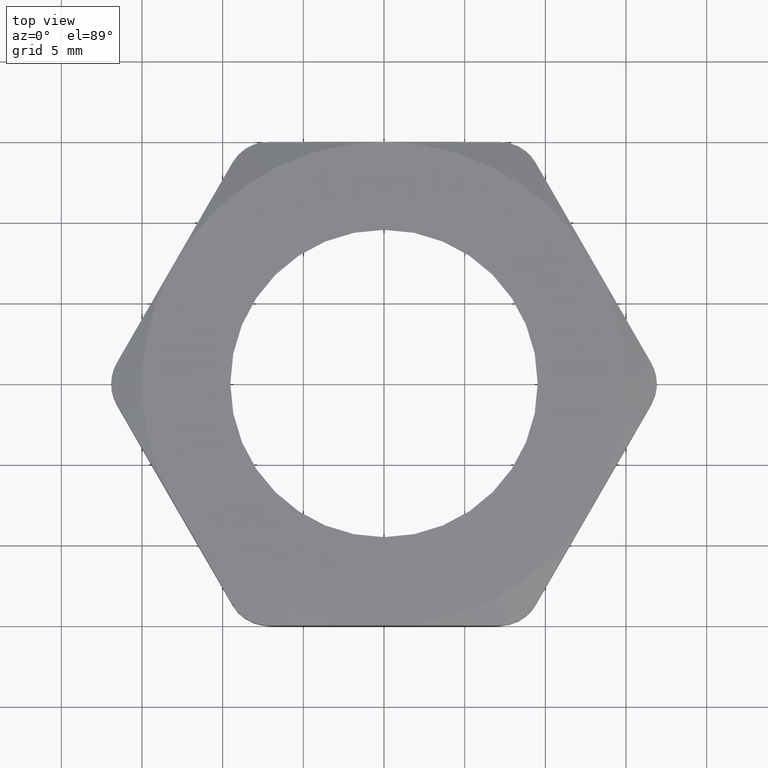
[diagram: clean part render]
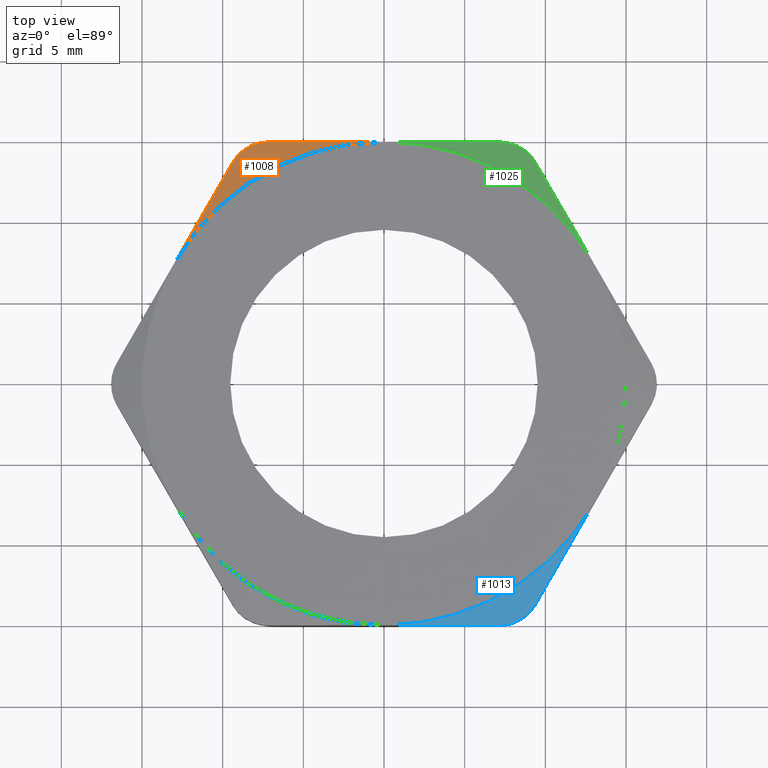
[diagram: same view with three faces highlighted in distinct colors, each labeled with its STEP entity id]
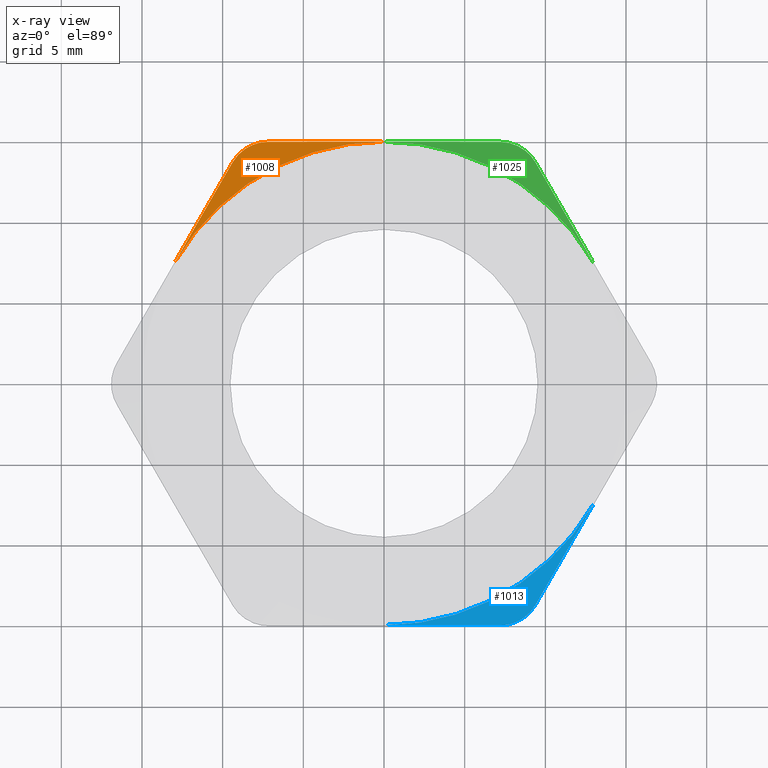
[diagram: x-ray of the same camera — body ghosted, the three highlighted faces saturated]
A machine part, top view with three faces highlighted in distinct colors.
The next image is the same camera in x-ray (body ghosted, the three faces saturated) — at least one of them is partly hidden behind the body in this view.
Their STEP definitions:

[orange] entity #1008 — the highlighted conical surface has half-angle 70 deg.
#852 = VERTEX_POINT ( 'NONE', #2270 ) ;
#854 = EDGE_CURVE ( 'NONE', #855, #852, #2263, .T. ) ;
#855 = VERTEX_POINT ( 'NONE', #2262 ) ;
#882 = EDGE_CURVE ( 'NONE', #855, #892, #2355, .T. ) ;
#892 = VERTEX_POINT ( 'NONE', #2368 ) ;
#894 = EDGE_CURVE ( 'NONE', #895, #892, #2367, .T. ) ;
#895 = VERTEX_POINT ( 'NONE', #2366 ) ;
#966 = EDGE_CURVE ( 'NONE', #895, #852, #2546, .T. ) ;
#1008 = ADVANCED_FACE ( 'NONE', ( #2649 ), #2644, .T. ) ;
#1009 = EDGE_LOOP ( 'NONE', ( #1010, #1062, #1063, #1064 ) ) ;
#1010 = ORIENTED_EDGE ( 'NONE', *, *, #854, .T. ) ;
#1062 = ORIENTED_EDGE ( 'NONE', *, *, #966, .F. ) ;
#1063 = ORIENTED_EDGE ( 'NONE', *, *, #894, .T. ) ;
#1064 = ORIENTED_EDGE ( 'NONE', *, *, #882, .F. ) ;
#2256 = CARTESIAN_POINT ( 'NONE',  ( -0.5109549882328189300, 0.2949999999999999800, 0.1400000000000000100 ) ) ;
#2257 = CARTESIAN_POINT ( 'NONE',  ( -0.4873798522409090700, 0.3358333333333332600, 0.1400000000000000100 ) ) ;
#2258 = CARTESIAN_POINT ( 'NONE',  ( -0.4638047162489993300, 0.3766666666666664800, 0.1379156573442720500 ) ) ;
#2259 = CARTESIAN_POINT ( 'NONE',  ( -0.4166544442651798400, 0.4583333333333333100, 0.1299136729781496500 ) ) ;
#2260 = CARTESIAN_POINT ( 'NONE',  ( -0.3930793082732701400, 0.4991666666666665400, 0.1240096691572097900 ) ) ;
#2261 = CARTESIAN_POINT ( 'NONE',  ( -0.3695041722813604500, 0.5399999999999999200, 0.1165898041837598200 ) ) ;
#2262 = CARTESIAN_POINT ( 'NONE',  ( -0.3695041722813604500, 0.5399999999999999200, 0.1165898041837598200 ) ) ;
#2263 = B_SPLINE_CURVE_WITH_KNOTS ( 'NONE', 3,
 ( #2261, #2260, #2259, #2258, #2257, #2256 ),
 .UNSPECIFIED., .F., .F.,
 ( 4, 2, 4 ),
 ( 2.309401076763871700E-007, 0.003593081665274719100, 0.007185932390441761300 ),
 .UNSPECIFIED. ) ;
#2270 = CARTESIAN_POINT ( 'NONE',  ( -0.5109549882328189300, 0.2949999999999999800, 0.1400000000000000100 ) ) ;
#2332 = CARTESIAN_POINT ( 'NONE',  ( -0.2829016319029170100, 0.5899999999999999700, 0.1165898041837604000 ) ) ;
#2333 = CARTESIAN_POINT ( 'NONE',  ( -0.2916344918958208600, 0.5899999999999999700, 0.1152155461094558100 ) ) ;
#2334 = CARTESIAN_POINT ( 'NONE',  ( -0.3003476335038807200, 0.5888494143445511800, 0.1141692742250594400 ) ) ;
#2335 = CARTESIAN_POINT ( 'NONE',  ( -0.3171431553112576400, 0.5843561750114829600, 0.1127692753527653200 ) ) ;
#2336 = CARTESIAN_POINT ( 'NONE',  ( -0.3253985704520011600, 0.5809398279768189800, 0.1124084237049081900 ) ) ;
#2337 = CARTESIAN_POINT ( 'NONE',  ( -0.3404977336752633100, 0.5722115025962156700, 0.1124113218517238200 ) ) ;
#2338 = CARTESIAN_POINT ( 'NONE',  ( -0.3475344738540587200, 0.5668041991354780800, 0.1127707450677139100 ) ) ;
#2339 = CARTESIAN_POINT ( 'NONE',  ( -0.3598709312914902300, 0.5544361405979255600, 0.1141820697376478400 ) ) ;
#2340 = CARTESIAN_POINT ( 'NONE',  ( -0.3651381384351335400, 0.5475621924492301000, 0.1152156707908651300 ) ) ;
#2341 = CARTESIAN_POINT ( 'NONE',  ( -0.3695041722813604500, 0.5399999999999999200, 0.1165898041837598200 ) ) ;
#2355 = B_SPLINE_CURVE_WITH_KNOTS ( 'NONE', 3,
 ( #2341, #2340, #2339, #2338, #2337, #2336, #2335, #2334, #2333, #2332 ),
 .UNSPECIFIED., .F., .F.,
 ( 4, 2, 2, 2, 4 ),
 ( 2.305283928959887000E-007, 0.0006644491919588606000, 0.001328667855524825200, 0.001992886519090789600, 0.002657105182656754200 ),
 .UNSPECIFIED. ) ;
#2360 = CARTESIAN_POINT ( 'NONE',  ( -0.2829016319029170100, 0.5899999999999999700, 0.1165898041837604000 ) ) ;
#2361 = CARTESIAN_POINT ( 'NONE',  ( -0.2359568793644979400, 0.5899999999999999700, 0.1239773273175950700 ) ) ;
#2362 = CARTESIAN_POINT ( 'NONE',  ( -0.1885694990668104500, 0.5899999999999997500, 0.1299184763548549600 ) ) ;
#2363 = CARTESIAN_POINT ( 'NONE',  ( -0.09417343624590569800, 0.5900000000000000800, 0.1379243167828554700 ) ) ;
#2364 = CARTESIAN_POINT ( 'NONE',  ( -0.04704775606604737900, 0.5899999999999999700, 0.1399999999999999900 ) ) ;
#2365 = CARTESIAN_POINT ( 'NONE',  ( 0.0000000000000000000, 0.5899999999999999700, 0.1400000000000000100 ) ) ;
#2366 = CARTESIAN_POINT ( 'NONE',  ( 0.0000000000000000000, 0.5899999999999999700, 0.1400000000000000100 ) ) ;
#2367 = B_SPLINE_CURVE_WITH_KNOTS ( 'NONE', 3,
 ( #2365, #2364, #2363, #2362, #2361, #2360 ),
 .UNSPECIFIED., .F., .F.,
 ( 4, 2, 4 ),
 ( 0.03721477544052118100, 0.04081988234232054200, 0.04442498924411990300 ),
 .UNSPECIFIED. ) ;
#2368 = CARTESIAN_POINT ( 'NONE',  ( -0.2829016319029170100, 0.5899999999999999700, 0.1165898041837604000 ) ) ;
#2542 = DIRECTION ( 'NONE',  ( 1.000000000000000000, 0.0000000000000000000, 0.0000000000000000000 ) ) ;
#2543 = DIRECTION ( 'NONE',  ( 0.0000000000000000000, 0.0000000000000000000, 1.000000000000000000 ) ) ;
#2544 = CARTESIAN_POINT ( 'NONE',  ( 0.0000000000000000000, 0.0000000000000000000, 0.1400000000000000100 ) ) ;
#2545 = AXIS2_PLACEMENT_3D ( 'NONE', #2544, #2543, #2542 ) ;
#2546 = CIRCLE ( 'NONE', #2545, 0.5899999999999999700 ) ;
#2639 = DIRECTION ( 'NONE',  ( 1.000000000000000000, 0.0000000000000000000, 0.0000000000000000000 ) ) ;
#2640 = DIRECTION ( 'NONE',  ( 0.0000000000000000000, 0.0000000000000000000, -1.000000000000000000 ) ) ;
#2641 = CARTESIAN_POINT ( 'NONE',  ( 0.0000000000000000000, 0.0000000000000000000, 0.1400000000000000100 ) ) ;
#2642 = AXIS2_PLACEMENT_3D ( 'NONE', #2641, #2640, #2639 ) ;
#2644 = CONICAL_SURFACE ( 'NONE', #2642, 0.5899999999999999700, 1.221730476396033500 ) ;
#2649 = FACE_OUTER_BOUND ( 'NONE', #1009, .T. ) ;

[blue] entity #1013 — the highlighted conical surface has half-angle 70 deg.
#172 = CARTESIAN_POINT ( 'NONE',  ( 0.2358826611893542800, -0.5899999999999998600, 0.1239890067589847200 ) ) ;
#174 = CARTESIAN_POINT ( 'NONE',  ( 0.2829016319029166200, -0.5899999999999998600, 0.1165898041837598600 ) ) ;
#750 = VERTEX_POINT ( 'NONE', #2008 ) ;
#769 = EDGE_CURVE ( 'NONE', #770, #750, #2062, .T. ) ;
#770 = VERTEX_POINT ( 'NONE', #2114 ) ;
#833 = VERTEX_POINT ( 'NONE', #2202 ) ;
#835 = EDGE_CURVE ( 'NONE', #836, #833, #2195, .T. ) ;
#836 = VERTEX_POINT ( 'NONE', #2194 ) ;
#938 = EDGE_CURVE ( 'NONE', #836, #750, #2475, .T. ) ;
#1013 = ADVANCED_FACE ( 'NONE', ( #2643 ), #2638, .T. ) ;
#1014 = EDGE_LOOP ( 'NONE', ( #1015, #1016, #1017, #1018 ) ) ;
#1015 = ORIENTED_EDGE ( 'NONE', *, *, #769, .T. ) ;
#1016 = ORIENTED_EDGE ( 'NONE', *, *, #938, .F. ) ;
#1017 = ORIENTED_EDGE ( 'NONE', *, *, #835, .T. ) ;
#1018 = ORIENTED_EDGE ( 'NONE', *, *, #1024, .F. ) ;
#1024 = EDGE_CURVE ( 'NONE', #770, #833, #2627, .T. ) ;
#1573 = CARTESIAN_POINT ( 'NONE',  ( 0.1888074652285850500, -0.5899999999999997500, 0.1298905240055037700 ) ) ;
#2008 = CARTESIAN_POINT ( 'NONE',  ( 0.2829016319029166200, -0.5899999999999998600, 0.1165898041837598600 ) ) ;
#2056 = CARTESIAN_POINT ( 'NONE',  ( 0.09451477370814034800, -0.5899999999999998600, 0.1379030901209119800 ) ) ;
#2057 = CARTESIAN_POINT ( 'NONE',  ( 0.04729674735058522100, -0.5899999999999997500, 0.1400000000000000700 ) ) ;
#2058 = CARTESIAN_POINT ( 'NONE',  ( 0.0000000000000000000, -0.5899999999999998600, 0.1400000000000000100 ) ) ;
#2062 = B_SPLINE_CURVE_WITH_KNOTS ( 'NONE', 3,
 ( #2058, #2057, #2056, #1573, #172, #174 ),
 .UNSPECIFIED., .F., .F.,
 ( 4, 2, 4 ),
 ( 0.02216258283476369600, 0.02579298862878100900, 0.02942339442279831900 ),
 .UNSPECIFIED. ) ;
#2114 = CARTESIAN_POINT ( 'NONE',  ( 0.0000000000000000000, -0.5899999999999998600, 0.1400000000000000100 ) ) ;
#2194 = CARTESIAN_POINT ( 'NONE',  ( 0.3695041722813604000, -0.5399999999999998100, 0.1165898041837598300 ) ) ;
#2195 = B_SPLINE_CURVE_WITH_KNOTS ( 'NONE', 3,
 ( #2249, #2248, #2247, #2246, #2245, #2244 ),
 .UNSPECIFIED., .F., .F.,
 ( 4, 2, 4 ),
 ( 2.309401076763871400E-007, 0.003593081665274719100, 0.007185932390441761300 ),
 .UNSPECIFIED. ) ;
#2202 = CARTESIAN_POINT ( 'NONE',  ( 0.5109549882328188200, -0.2949999999999998200, 0.1400000000000000100 ) ) ;
#2244 = CARTESIAN_POINT ( 'NONE',  ( 0.5109549882328188200, -0.2949999999999998200, 0.1400000000000000100 ) ) ;
#2245 = CARTESIAN_POINT ( 'NONE',  ( 0.4873798522409089600, -0.3358333333333331000, 0.1400000000000000700 ) ) ;
#2246 = CARTESIAN_POINT ( 'NONE',  ( 0.4638047162489993300, -0.3766666666666663200, 0.1379156573442721100 ) ) ;
#2247 = CARTESIAN_POINT ( 'NONE',  ( 0.4166544442651798400, -0.4583333333333330900, 0.1299136729781496800 ) ) ;
#2248 = CARTESIAN_POINT ( 'NONE',  ( 0.3930793082732701400, -0.4991666666666666500, 0.1240096691572097900 ) ) ;
#2249 = CARTESIAN_POINT ( 'NONE',  ( 0.3695041722813604000, -0.5399999999999998100, 0.1165898041837598300 ) ) ;
#2469 = CARTESIAN_POINT ( 'NONE',  ( 0.3651381384351336000, -0.5475621924492303200, 0.1152156707908652000 ) ) ;
#2470 = CARTESIAN_POINT ( 'NONE',  ( 0.3695041722813604000, -0.5399999999999998100, 0.1165898041837598300 ) ) ;
#2475 = B_SPLINE_CURVE_WITH_KNOTS ( 'NONE', 3,
 ( #2470, #2469, #2527, #2526, #2525, #2524, #2523, #2522, #2521, #2520 ),
 .UNSPECIFIED., .F., .F.,
 ( 4, 2, 2, 2, 4 ),
 ( 2.305283928960364000E-007, 0.0006644491919588617900, 0.001328667855524827600, 0.001992886519090793500, 0.002657105182656761600 ),
 .UNSPECIFIED. ) ;
#2520 = CARTESIAN_POINT ( 'NONE',  ( 0.2829016319029166200, -0.5899999999999998600, 0.1165898041837598600 ) ) ;
#2521 = CARTESIAN_POINT ( 'NONE',  ( 0.2916344918958205800, -0.5899999999999998600, 0.1152155461094558800 ) ) ;
#2522 = CARTESIAN_POINT ( 'NONE',  ( 0.3003476335038803300, -0.5888494143445509600, 0.1141692742250595100 ) ) ;
#2523 = CARTESIAN_POINT ( 'NONE',  ( 0.3171431553112573100, -0.5843561750114829600, 0.1127692753527653700 ) ) ;
#2524 = CARTESIAN_POINT ( 'NONE',  ( 0.3253985704520011000, -0.5809398279768190900, 0.1124084237049083100 ) ) ;
#2525 = CARTESIAN_POINT ( 'NONE',  ( 0.3404977336752632600, -0.5722115025962155600, 0.1124113218517238700 ) ) ;
#2526 = CARTESIAN_POINT ( 'NONE',  ( 0.3475344738540587200, -0.5668041991354780800, 0.1127707450677139900 ) ) ;
#2527 = CARTESIAN_POINT ( 'NONE',  ( 0.3598709312914901100, -0.5544361405979253400, 0.1141820697376479100 ) ) ;
#2623 = DIRECTION ( 'NONE',  ( 1.000000000000000000, 0.0000000000000000000, 0.0000000000000000000 ) ) ;
#2624 = DIRECTION ( 'NONE',  ( 0.0000000000000000000, 0.0000000000000000000, 1.000000000000000000 ) ) ;
#2625 = CARTESIAN_POINT ( 'NONE',  ( 0.0000000000000000000, 0.0000000000000000000, 0.1400000000000000100 ) ) ;
#2626 = AXIS2_PLACEMENT_3D ( 'NONE', #2625, #2624, #2623 ) ;
#2627 = CIRCLE ( 'NONE', #2626, 0.5899999999999999700 ) ;
#2633 = DIRECTION ( 'NONE',  ( 1.000000000000000000, 0.0000000000000000000, 0.0000000000000000000 ) ) ;
#2634 = DIRECTION ( 'NONE',  ( 0.0000000000000000000, 0.0000000000000000000, -1.000000000000000000 ) ) ;
#2635 = CARTESIAN_POINT ( 'NONE',  ( 0.0000000000000000000, 0.0000000000000000000, 0.1400000000000000100 ) ) ;
#2636 = AXIS2_PLACEMENT_3D ( 'NONE', #2635, #2634, #2633 ) ;
#2638 = CONICAL_SURFACE ( 'NONE', #2636, 0.5899999999999999700, 1.221730476396033500 ) ;
#2643 = FACE_OUTER_BOUND ( 'NONE', #1014, .T. ) ;

[green] entity #1025 — the highlighted conical surface has half-angle 70 deg.
#812 = VERTEX_POINT ( 'NONE', #2180 ) ;
#895 = VERTEX_POINT ( 'NONE', #2366 ) ;
#897 = EDGE_CURVE ( 'NONE', #898, #895, #2359, .T. ) ;
#898 = VERTEX_POINT ( 'NONE', #2358 ) ;
#905 = VERTEX_POINT ( 'NONE', #2388 ) ;
#907 = EDGE_CURVE ( 'NONE', #812, #905, #2387, .T. ) ;
#950 = EDGE_LOOP ( 'NONE', ( #951, #952, #953, #954 ) ) ;
#951 = ORIENTED_EDGE ( 'NONE', *, *, #907, .T. ) ;
#952 = ORIENTED_EDGE ( 'NONE', *, *, #985, .F. ) ;
#953 = ORIENTED_EDGE ( 'NONE', *, *, #897, .T. ) ;
#954 = ORIENTED_EDGE ( 'NONE', *, *, #964, .F. ) ;
#964 = EDGE_CURVE ( 'NONE', #812, #895, #2551, .T. ) ;
#985 = EDGE_CURVE ( 'NONE', #898, #905, #2619, .T. ) ;
#1025 = ADVANCED_FACE ( 'NONE', ( #2622 ), #2621, .T. ) ;
#2180 = CARTESIAN_POINT ( 'NONE',  ( 0.5109549882328189300, 0.2949999999999998700, 0.1400000000000000100 ) ) ;
#2358 = CARTESIAN_POINT ( 'NONE',  ( 0.2829016319029168900, 0.5899999999999999700, 0.1165898041837597500 ) ) ;
#2359 = B_SPLINE_CURVE_WITH_KNOTS ( 'NONE', 3,
 ( #2407, #2406, #2405, #2404, #2403, #2402 ),
 .UNSPECIFIED., .F., .F.,
 ( 4, 2, 4 ),
 ( 0.02996640295419522900, 0.03359058919735820300, 0.03721477544052118100 ),
 .UNSPECIFIED. ) ;
#2366 = CARTESIAN_POINT ( 'NONE',  ( 0.0000000000000000000, 0.5899999999999999700, 0.1400000000000000100 ) ) ;
#2385 = CARTESIAN_POINT ( 'NONE',  ( 0.4873798522409091800, 0.3358333333333332100, 0.1399999999999999900 ) ) ;
#2386 = CARTESIAN_POINT ( 'NONE',  ( 0.5109549882328189300, 0.2949999999999998700, 0.1400000000000000100 ) ) ;
#2387 = B_SPLINE_CURVE_WITH_KNOTS ( 'NONE', 3,
 ( #2386, #2385, #2439, #2438, #2437, #2436 ),
 .UNSPECIFIED., .F., .F.,
 ( 4, 2, 4 ),
 ( 0.007185932390441748300, 0.01077878311560878800, 0.01437163384077582900 ),
 .UNSPECIFIED. ) ;
#2388 = CARTESIAN_POINT ( 'NONE',  ( 0.3695041722813607300, 0.5399999999999999200, 0.1165898041837597200 ) ) ;
#2402 = CARTESIAN_POINT ( 'NONE',  ( 0.0000000000000000000, 0.5899999999999999700, 0.1400000000000000100 ) ) ;
#2403 = CARTESIAN_POINT ( 'NONE',  ( 0.04729674735058512400, 0.5899999999999999700, 0.1400000000000000100 ) ) ;
#2404 = CARTESIAN_POINT ( 'NONE',  ( 0.09451477370814037600, 0.5899999999999999700, 0.1379030901209119000 ) ) ;
#2405 = CARTESIAN_POINT ( 'NONE',  ( 0.1888074652285852700, 0.5900000000000000800, 0.1298905240055037700 ) ) ;
#2406 = CARTESIAN_POINT ( 'NONE',  ( 0.2358826611893545500, 0.5900000000000000800, 0.1239890067589846900 ) ) ;
#2407 = CARTESIAN_POINT ( 'NONE',  ( 0.2829016319029168900, 0.5899999999999999700, 0.1165898041837597500 ) ) ;
#2436 = CARTESIAN_POINT ( 'NONE',  ( 0.3695041722813607300, 0.5399999999999999200, 0.1165898041837597200 ) ) ;
#2437 = CARTESIAN_POINT ( 'NONE',  ( 0.3930793082732704200, 0.4991666666666666500, 0.1240096691572097500 ) ) ;
#2438 = CARTESIAN_POINT ( 'NONE',  ( 0.4166544442651803300, 0.4583333333333331500, 0.1299136729781496000 ) ) ;
#2439 = CARTESIAN_POINT ( 'NONE',  ( 0.4638047162489996600, 0.3766666666666664800, 0.1379156573442719700 ) ) ;
#2547 = DIRECTION ( 'NONE',  ( 1.000000000000000000, 0.0000000000000000000, 0.0000000000000000000 ) ) ;
#2548 = DIRECTION ( 'NONE',  ( 0.0000000000000000000, 0.0000000000000000000, 1.000000000000000000 ) ) ;
#2549 = CARTESIAN_POINT ( 'NONE',  ( 0.0000000000000000000, 0.0000000000000000000, 0.1400000000000000100 ) ) ;
#2550 = AXIS2_PLACEMENT_3D ( 'NONE', #2549, #2548, #2547 ) ;
#2551 = CIRCLE ( 'NONE', #2550, 0.5899999999999999700 ) ;
#2606 = CARTESIAN_POINT ( 'NONE',  ( 0.3695041722813607300, 0.5399999999999999200, 0.1165898041837597200 ) ) ;
#2607 = CARTESIAN_POINT ( 'NONE',  ( 0.3651377445164709600, 0.5475628747363686700, 0.1152155468118012300 ) ) ;
#2608 = CARTESIAN_POINT ( 'NONE',  ( 0.3597847473690306000, 0.5545333734719309900, 0.1141692761612618500 ) ) ;
#2609 = CARTESIAN_POINT ( 'NONE',  ( 0.3474957251864415100, 0.5668321081861148500, 0.1127692760047540000 ) ) ;
#2610 = CARTESIAN_POINT ( 'NONE',  ( 0.3404093738601077800, 0.5722733349497009000, 0.1124084241438574500 ) ) ;
#2611 = CARTESIAN_POINT ( 'NONE',  ( 0.3253008490887964700, 0.5809854296620350400, 0.1124113214073413800 ) ) ;
#2612 = CARTESIAN_POINT ( 'NONE',  ( 0.3170995975436247100, 0.5843757819199587600, 0.1127707454054603000 ) ) ;
#2613 = CARTESIAN_POINT ( 'NONE',  ( 0.3002203381533374300, 0.5888754341622743900, 0.1141820677014979800 ) ) ;
#2614 = CARTESIAN_POINT ( 'NONE',  ( 0.2916337179818061500, 0.5900000000000000800, 0.1152156678974593400 ) ) ;
#2615 = CARTESIAN_POINT ( 'NONE',  ( 0.2829016319029168900, 0.5899999999999999700, 0.1165898041837597500 ) ) ;
#2619 = B_SPLINE_CURVE_WITH_KNOTS ( 'NONE', 3,
 ( #2615, #2614, #2613, #2612, #2611, #2610, #2609, #2608, #2607, #2606 ),
 .UNSPECIFIED., .F., .F.,
 ( 4, 2, 2, 2, 4 ),
 ( 1.996484191236729500E-007, 0.0006644183056870941900, 0.001328636962955062100, 0.001992855620223030000, 0.002657074277490997300 ),
 .UNSPECIFIED. ) ;
#2620 = AXIS2_PLACEMENT_3D ( 'NONE', #2681, #2680, #2679 ) ;
#2621 = CONICAL_SURFACE ( 'NONE', #2620, 0.5899999999999999700, 1.221730476396033500 ) ;
#2622 = FACE_OUTER_BOUND ( 'NONE', #950, .T. ) ;
#2679 = DIRECTION ( 'NONE',  ( 1.000000000000000000, 0.0000000000000000000, 0.0000000000000000000 ) ) ;
#2680 = DIRECTION ( 'NONE',  ( 0.0000000000000000000, 0.0000000000000000000, -1.000000000000000000 ) ) ;
#2681 = CARTESIAN_POINT ( 'NONE',  ( 0.0000000000000000000, 0.0000000000000000000, 0.1400000000000000100 ) ) ;